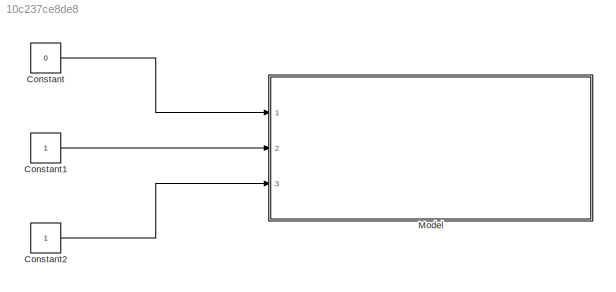
MODEL slx_10c237ce8de8
KIND model
CONFIG AbsTol = auto
CONFIG EnableMultiTasking = on
CONFIG FixedStep = 1e-3
CONFIG InitFcn = ATR_PACING = Simulink.Variant('Paced == 1');\nVENT_PACING = Simulink.Variant('Paced == 2');\nPaced = 1;\n
CONFIG MaxStep = auto
CONFIG MinStep = auto
CONFIG RelTol = 1e-3
CONFIG SampleTimeConstraint = Unconstrained
CONFIG Solver = FixedStepAuto
CONFIG SolverName = FixedStepAuto
CONFIG StartTime = 0.0
CONFIG StopTime = 10.0
BLOCK [Constant] Constant
  Value = 0
BLOCK [Constant] Constant1
  OutDataTypeStr = boolean
BLOCK [Constant] Constant2
BLOCK [ModelReference] Model
  ModelNameDialog = RechargeAndPace.slx
  ModelReferenceVersion = 1.39
  Ports = [3]
LINE Constant1:1 -> Model:2
LINE Constant2:1 -> Model:3
LINE Constant:1 -> Model:1
